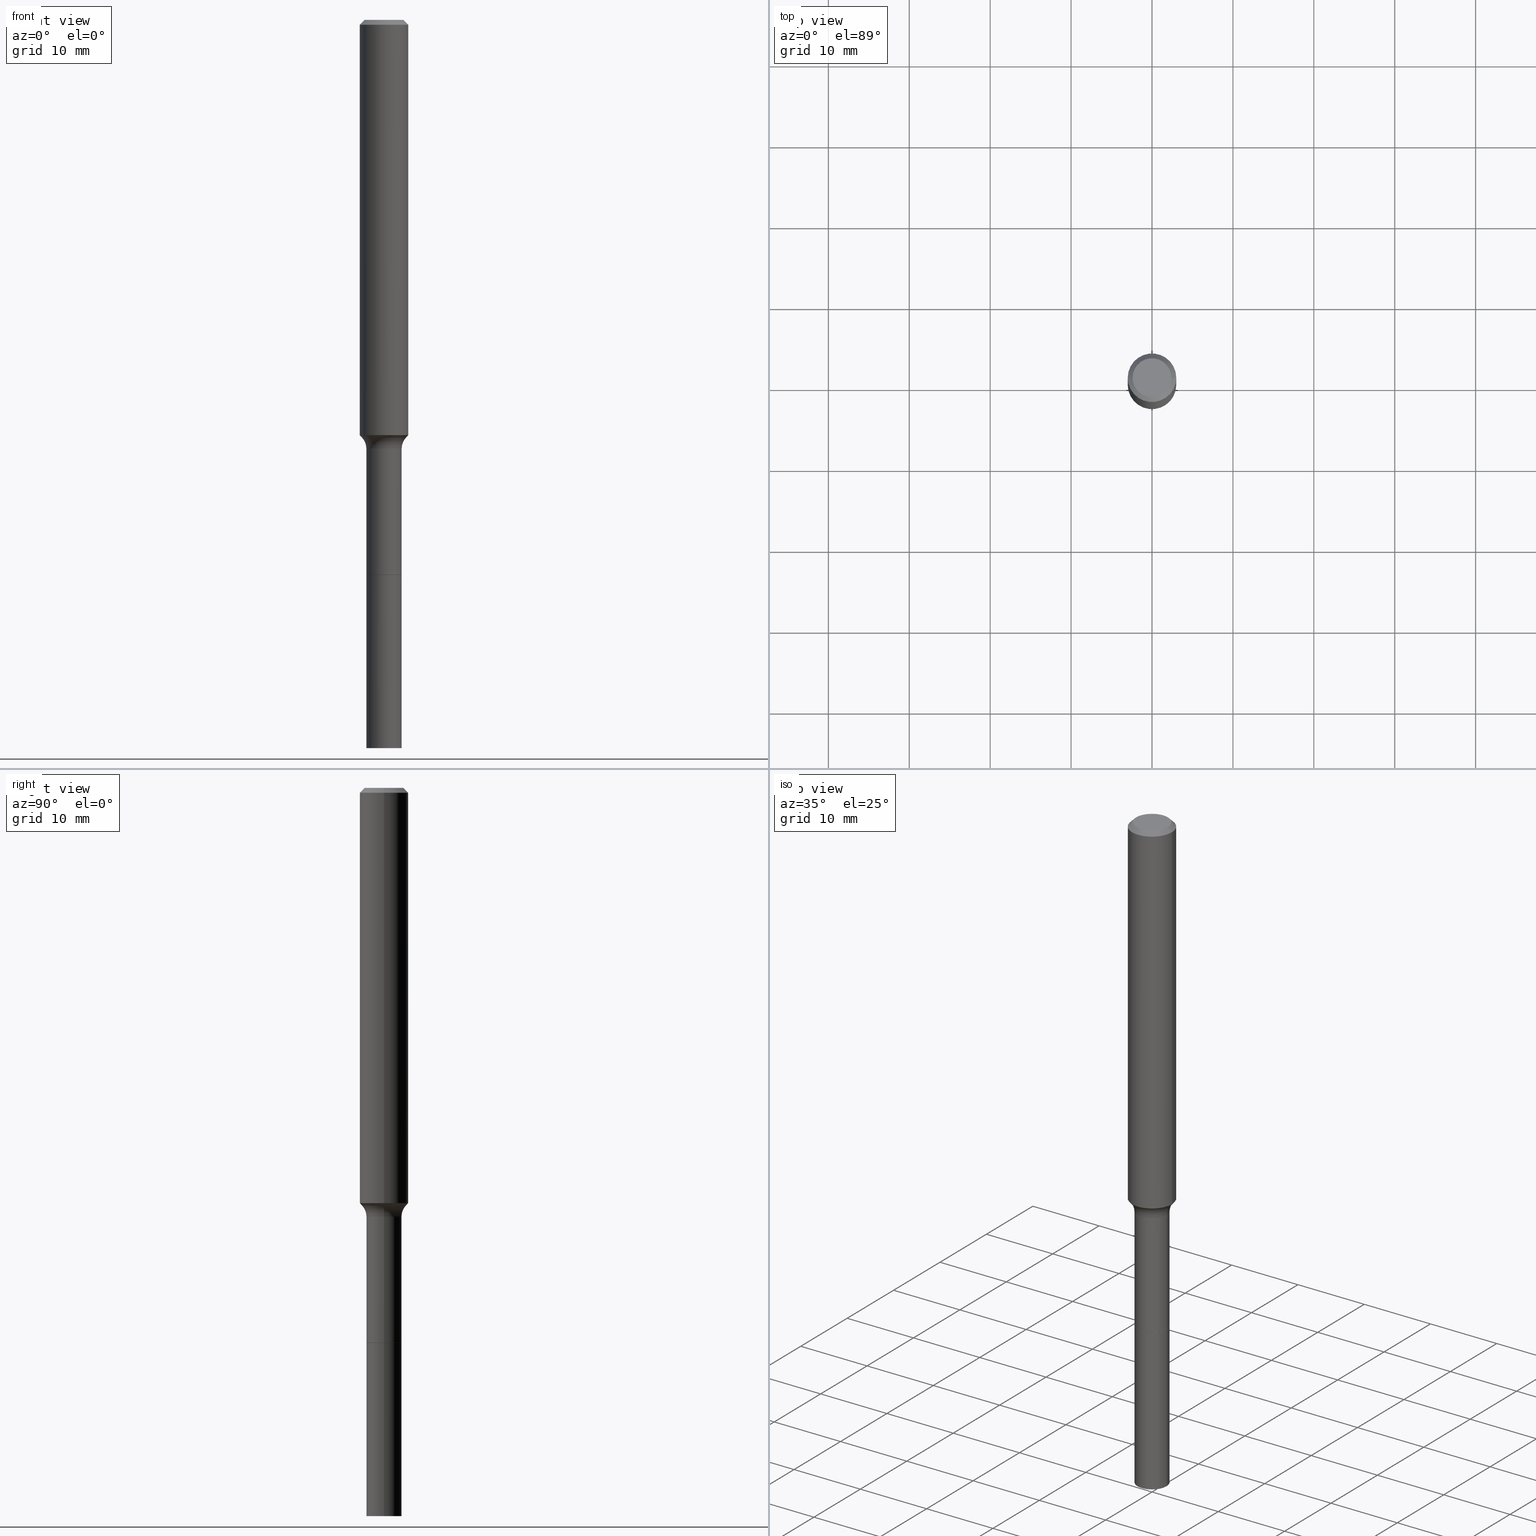
[diagram: canonical four-view strip — front | top / right | iso, engineering-drawing reading convention]
A machine part, canonical four-view strip (front | top / right | iso — engineering-drawing reading convention). The complete STEP part file that produces these views, byte-faithful:
ISO-10303-21;
HEADER;
FILE_DESCRIPTION (( 'STEP AP203' ),
    '1' );
FILE_NAME ('58877.STEP',
    '2025-04-01T15:26:20',
    ( '' ),
    ( '' ),
    'SwSTEP 2.0',
    'SolidWorks 2024',
    '' );
FILE_SCHEMA (( 'CONFIG_CONTROL_DESIGN' ));
ENDSEC;

DATA;
#1 = DIRECTION ( 'NONE',  ( 1.000000000000000000, -6.982962677686269077E-15, 4.883557194083113462E-29 ) ) ;
#2 = CC_DESIGN_PERSON_AND_ORGANIZATION_ASSIGNMENT ( #42, #45, ( #33 ) ) ;
#3 = LINE ( 'NONE', #360, #274 ) ;
#4 = CARTESIAN_POINT ( 'NONE',  ( -0.08594999999999998475, -7.742832195863360174E-15, -2.698799999999999422 ) ) ;
#5 = CARTESIAN_POINT ( 'NONE',  ( 8.665029620955794069E-29, -1.237136582792291707E-14, -3.543299999999999894 ) ) ;
#6 = VECTOR ( 'NONE', #326, 39.37007874015748143 ) ;
#7 = VECTOR ( 'NONE', #58, 39.37007874015748143 ) ;
#8 = FACE_OUTER_BOUND ( 'NONE', #40, .T. ) ;
#9 = FACE_OUTER_BOUND ( 'NONE', #502, .T. ) ;
#10 = ADVANCED_FACE ( 'NONE', ( #279 ), #32, .F. ) ;
#11 = PERSON_AND_ORGANIZATION ( #113, #425 ) ;
#12 = FACE_OUTER_BOUND ( 'NONE', #380, .T. ) ;
#13 =( CONVERSION_BASED_UNIT ( 'INCH', #303 ) LENGTH_UNIT ( ) NAMED_UNIT ( #102 ) );
#14 = APPROVAL_DATE_TIME ( #376, #78 ) ;
#15 = MECHANICAL_CONTEXT ( 'NONE', #464, 'mechanical' ) ;
#16 = AXIS2_PLACEMENT_3D ( 'NONE', #240, #37, #514 ) ;
#17 = ORIENTED_EDGE ( 'NONE', *, *, #423, .F. ) ;
#18 = FACE_OUTER_BOUND ( 'NONE', #318, .T. ) ;
#19 = DIRECTION ( 'NONE',  ( -2.445468806185136597E-29, 3.491481338843145583E-15, 1.000000000000000000 ) ) ;
#20 = COORDINATED_UNIVERSAL_TIME_OFFSET ( 5, 0, .BEHIND. ) ;
#21 = ORIENTED_EDGE ( 'NONE', *, *, #30, .F. ) ;
#22 = MANIFOLD_SOLID_BREP ( 'Body-Move/Copy2[2]', #507 ) ;
#23 = ORIENTED_EDGE ( 'NONE', *, *, #193, .F. ) ;
#24 = MANIFOLD_SOLID_BREP ( 'Body-Move/Copy2[1]', #329 ) ;
#25 = APPROVAL_STATUS ( 'not_yet_approved' ) ;
#26 = AXIS2_PLACEMENT_3D ( 'NONE', #518, #356, #509 ) ;
#27 = AXIS2_PLACEMENT_3D ( 'NONE', #218, #267, #335 ) ;
#28 = ORIENTED_EDGE ( 'NONE', *, *, #205, .T. ) ;
#29 = EDGE_CURVE ( 'NONE', #384, #154, #292, .T. ) ;
#30 = EDGE_CURVE ( 'NONE', #244, #422, #174, .T. ) ;
#31 = SECURITY_CLASSIFICATION ( '', '', #64 ) ;
#32 = PLANE ( 'NONE',  #500 ) ;
#33 = PRODUCT_DEFINITION ( 'UNKNOWN', '', #366, #280 ) ;
#34 = VERTEX_POINT ( 'NONE', #286 ) ;
#35 = ORIENTED_EDGE ( 'NONE', *, *, #387, .T. ) ;
#36 = AXIS2_PLACEMENT_3D ( 'NONE', #204, #477, #358 ) ;
#37 = DIRECTION ( 'NONE',  ( -2.445468806185136597E-29, 3.491481338843145583E-15, 1.000000000000000000 ) ) ;
#38 = DIRECTION ( 'NONE',  ( 1.000000000000000000, -6.982962677686265922E-15, 4.876176775795935793E-29 ) ) ;
#39 = CARTESIAN_POINT ( 'NONE',  ( 5.776197320209327532E-31, -8.246878922347559293E-17, -0.02362000000000014088 ) ) ;
#40 = EDGE_LOOP ( 'NONE', ( #345, #357, #230, #23 ) ) ;
#41 = FACE_OUTER_BOUND ( 'NONE', #351, .T. ) ;
#42 = PERSON_AND_ORGANIZATION ( #113, #425 ) ;
#43 = CARTESIAN_POINT ( 'NONE',  ( 0.1074417038704664346, -7.844044161600553414E-15, -2.031740131194999854 ) ) ;
#44 = CARTESIAN_POINT ( 'NONE',  ( 0.08594999999999992923, -7.884463159375587951E-15, -2.086299999999999599 ) ) ;
#45 = PERSON_AND_ORGANIZATION_ROLE ( 'creator' ) ;
#46 = VECTOR ( 'NONE', #469, 39.37007874015748143 ) ;
#47 = DIRECTION ( 'NONE',  ( -2.445468806185136597E-29, 3.491481338843145583E-15, 1.000000000000000000 ) ) ;
#48 = CARTESIAN_POINT ( 'NONE',  ( 4.940606325934994993E-29, -7.053876437083654599E-15, -2.020310507923510634 ) ) ;
#49 = DIRECTION ( 'NONE',  ( -2.445468806185136597E-29, 3.491481338843145583E-15, 1.000000000000000000 ) ) ;
#50 = DIRECTION ( 'NONE',  ( -2.445468806185136877E-29, 3.491481338843145188E-15, 1.000000000000000000 ) ) ;
#51 = ADVANCED_FACE ( 'NONE', ( #245 ), #400, .F. ) ;
#52 = CARTESIAN_POINT ( 'NONE',  ( 6.601053948535538665E-29, -9.424555577939300720E-15, -2.699299999999999589 ) ) ;
#53 = EDGE_CURVE ( 'NONE', #34, #456, #55, .T. ) ;
#54 = APPLICATION_PROTOCOL_DEFINITION ( 'international standard', 'config_control_design', 1994, #223 ) ;
#55 = CIRCLE ( 'NONE', #336, 0.08544999999999998430 ) ;
#56 = CIRCLE ( 'NONE', #347, 0.08595000000000020679 ) ;
#57 = CARTESIAN_POINT ( 'NONE',  ( 0.08594999999999998475, -1.002474122008643652E-14, -2.699299999999999589 ) ) ;
#58 = DIRECTION ( 'NONE',  ( -2.445468806185136877E-29, 3.491481338843145188E-15, 1.000000000000000000 ) ) ;
#59 = CYLINDRICAL_SURFACE ( 'NONE', #275, 0.1181000000000001215 ) ;
#60 = ORIENTED_EDGE ( 'NONE', *, *, #258, .T. ) ;
#61 =( LENGTH_UNIT ( ) NAMED_UNIT ( * ) SI_UNIT ( $, .METRE. ) );
#62 = PLANE ( 'NONE',  #189 ) ;
#63 = AXIS2_PLACEMENT_3D ( 'NONE', #444, #132, #478 ) ;
#64 = SECURITY_CLASSIFICATION_LEVEL ( 'unclassified' ) ;
#65 = EDGE_LOOP ( 'NONE', ( #320, #155, #398, #337 ) ) ;
#66 = ORIENTED_EDGE ( 'NONE', *, *, #152, .F. ) ;
#67 = SHAPE_DEFINITION_REPRESENTATION ( #117, #83 ) ;
#68 = ADVANCED_FACE ( 'NONE', ( #234 ), #162, .F. ) ;
#69 = ORIENTED_EDGE ( 'NONE', *, *, #29, .T. ) ;
#70 = EDGE_CURVE ( 'NONE', #305, #461, #284, .T. ) ;
#71 = CALENDAR_DATE ( 2025, 1, 4 ) ;
#72 = APPROVAL_ROLE ( '' ) ;
#73 = AXIS2_PLACEMENT_3D ( 'NONE', #411, #265, #176 ) ;
#74 = AXIS2_PLACEMENT_3D ( 'NONE', #413, #381, #183 ) ;
#75 = DIRECTION ( 'NONE',  ( 1.000000000000000000, -6.982962677686278543E-15, 0.000000000000000000 ) ) ;
#76 = ORIENTED_EDGE ( 'NONE', *, *, #281, .T. ) ;
#77 = EDGE_LOOP ( 'NONE', ( #282, #511, #112, #79 ) ) ;
#78 = APPROVAL ( #25, 'UNSPECIFIED' ) ;
#79 = ORIENTED_EDGE ( 'NONE', *, *, #504, .F. ) ;
#80 = FACE_OUTER_BOUND ( 'NONE', #118, .T. ) ;
#81 = DIRECTION ( 'NONE',  ( -2.445468806185136597E-29, 3.491481338843145583E-15, 1.000000000000000000 ) ) ;
#82 = DIRECTION ( 'NONE',  ( 2.445468806185136597E-29, -3.491481338843145583E-15, -1.000000000000000000 ) ) ;
#83 = ADVANCED_BREP_SHAPE_REPRESENTATION ( '58877', ( #24, #22, #107 ), #116 ) ;
#84 = FACE_OUTER_BOUND ( 'NONE', #65, .T. ) ;
#85 = CARTESIAN_POINT ( 'NONE',  ( 5.101981570344049922E-29, -7.284277517228453725E-15, -2.086299999999999599 ) ) ;
#86 = ADVANCED_FACE ( 'NONE', ( #167 ), #317, .T. ) ;
#87 = CARTESIAN_POINT ( 'NONE',  ( 5.776197320209327532E-31, -8.246878922347559293E-17, -0.02362000000000014088 ) ) ;
#88 = AXIS2_PLACEMENT_3D ( 'NONE', #316, #81, #438 ) ;
#89 = CARTESIAN_POINT ( 'NONE',  ( 6.601053948535538665E-29, -9.424555577939300720E-15, -2.699299999999999589 ) ) ;
#90 = CARTESIAN_POINT ( 'NONE',  ( -0.1181000000000001215, 8.391509709326791832E-16, -5.809262341591049389E-30 ) ) ;
#91 = CC_DESIGN_APPROVAL ( #78, ( #31 ) ) ;
#92 = EDGE_CURVE ( 'NONE', #127, #432, #130, .T. ) ;
#93 = DIRECTION ( 'NONE',  ( -2.445468806185136877E-29, 3.491481338843145188E-15, 1.000000000000000000 ) ) ;
#94 = DIRECTION ( 'NONE',  ( -2.445468806185136597E-29, 3.491481338843145583E-15, 1.000000000000000000 ) ) ;
#95 = DIRECTION ( 'NONE',  ( 1.000000000000000000, -6.982962677686278543E-15, 0.000000000000000000 ) ) ;
#96 = CARTESIAN_POINT ( 'NONE',  ( 0.000000000000000000, 0.000000000000000000, 0.000000000000000000 ) ) ;
#97 = APPROVAL ( #177, 'UNSPECIFIED' ) ;
#98 = DIRECTION ( 'NONE',  ( -2.445468806185136597E-29, 3.491481338843145583E-15, 1.000000000000000000 ) ) ;
#99 = DIRECTION ( 'NONE',  ( -2.445468806185136597E-29, 3.491481338843145583E-15, 1.000000000000000000 ) ) ;
#100 = VECTOR ( 'NONE', #50, 39.37007874015748143 ) ;
#101 = AXIS2_PLACEMENT_3D ( 'NONE', #219, #94, #333 ) ;
#102 = DIMENSIONAL_EXPONENTS ( 1.000000000000000000, 0.000000000000000000, 0.000000000000000000, 0.000000000000000000, 0.000000000000000000, 0.000000000000000000, 0.000000000000000000 ) ;
#103 = ORIENTED_EDGE ( 'NONE', *, *, #70, .T. ) ;
#104 = DIRECTION ( 'NONE',  ( -2.445468806185136597E-29, 3.491481338843145583E-15, 1.000000000000000000 ) ) ;
#105 = ORIENTED_EDGE ( 'NONE', *, *, #201, .T. ) ;
#106 = CARTESIAN_POINT ( 'NONE',  ( 4.968557113111869591E-29, -7.093782753446066454E-15, -2.031740131194999854 ) ) ;
#107 = AXIS2_PLACEMENT_3D ( 'NONE', #448, #494, #306 ) ;
#108 = AXIS2_PLACEMENT_3D ( 'NONE', #137, #247, #1 ) ;
#109 = VERTEX_POINT ( 'NONE', #372 ) ;
#110 = ADVANCED_FACE ( 'NONE', ( #147 ), #480, .T. ) ;
#111 = ADVANCED_FACE ( 'NONE', ( #327 ), #406, .T. ) ;
#112 = ORIENTED_EDGE ( 'NONE', *, *, #70, .F. ) ;
#113 = PERSON ( 'UNSPECIFIED', 'UNSPECIFIED', 'UNSPECIFIED', ('UNSPECIFIED'), ('UNSPECIFIED'), ('UNSPECIFIED') ) ;
#114 = EDGE_LOOP ( 'NONE', ( #69, #506 ) ) ;
#115 = AXIS2_PLACEMENT_3D ( 'NONE', #203, #476, #192 ) ;
#116 =( GEOMETRIC_REPRESENTATION_CONTEXT ( 3 ) GLOBAL_UNCERTAINTY_ASSIGNED_CONTEXT ( ( #388 ) ) GLOBAL_UNIT_ASSIGNED_CONTEXT ( ( #13, #178, #300 ) ) REPRESENTATION_CONTEXT ( 'NONE', 'WORKASPACE' ) );
#117 = PRODUCT_DEFINITION_SHAPE ( 'NONE', 'NONE',  #33 ) ;
#118 = EDGE_LOOP ( 'NONE', ( #157, #312, #28, #199 ) ) ;
#119 = PRODUCT_RELATED_PRODUCT_CATEGORY ( 'detail', '', ( #146 ) ) ;
#120 = ORIENTED_EDGE ( 'NONE', *, *, #161, .T. ) ;
#121 = CARTESIAN_POINT ( 'NONE',  ( 0.1180999999999999966, -9.071566814582237199E-16, -0.02362000000000014088 ) ) ;
#122 = AXIS2_PLACEMENT_3D ( 'NONE', #96, #420, #200 ) ;
#123 = ORIENTED_EDGE ( 'NONE', *, *, #193, .T. ) ;
#124 = CIRCLE ( 'NONE', #232, 0.08594999999999992923 ) ;
#125 = LINE ( 'NONE', #211, #241 ) ;
#126 = ADVANCED_FACE ( 'NONE', ( #84 ), #354, .T. ) ;
#127 = VERTEX_POINT ( 'NONE', #254 ) ;
#128 = ADVANCED_FACE ( 'NONE', ( #408 ), #62, .F. ) ;
#129 = DIRECTION ( 'NONE',  ( -0.7071067811865461294, 2.468850131082242072E-15, -0.7071067811865489050 ) ) ;
#130 = LINE ( 'NONE', #226, #100 ) ;
#131 = DIRECTION ( 'NONE',  ( -6.982962677686266711E-15, -1.000000000000000000, 3.491481338843145583E-15 ) ) ;
#132 = DIRECTION ( 'NONE',  ( -2.445468806185136597E-29, 3.491481338843145583E-15, 1.000000000000000000 ) ) ;
#133 = CYLINDRICAL_SURFACE ( 'NONE', #397, 0.08595000000000010965 ) ;
#134 = CARTESIAN_POINT ( 'NONE',  ( 7.545787641473140628E-46, -1.077338491108201769E-31, -3.085620075131671975E-17 ) ) ;
#135 = DIRECTION ( 'NONE',  ( -2.445468806185136597E-29, 3.491481338843145583E-15, 1.000000000000000000 ) ) ;
#136 = PERSON_AND_ORGANIZATION_ROLE ( 'design_owner' ) ;
#137 = CARTESIAN_POINT ( 'NONE',  ( 5.101981570344049922E-29, -7.284277517228453725E-15, -2.086299999999999599 ) ) ;
#138 = CARTESIAN_POINT ( 'NONE',  ( -0.1074417038704665456, -6.330363531417588506E-15, -2.031740131194999854 ) ) ;
#139 = DATE_TIME_ROLE ( 'creation_date' ) ;
#140 = COORDINATED_UNIVERSAL_TIME_OFFSET ( 5, 0, .BEHIND. ) ;
#141 = AXIS2_PLACEMENT_3D ( 'NONE', #341, #330, #483 ) ;
#142 = AXIS2_PLACEMENT_3D ( 'NONE', #39, #82, #442 ) ;
#143 = VERTEX_POINT ( 'NONE', #43 ) ;
#144 = PERSON_AND_ORGANIZATION ( #113, #425 ) ;
#145 = CC_DESIGN_APPROVAL ( #268, ( #366 ) ) ;
#146 = PRODUCT ( '58877', '58877', '', ( #15 ) ) ;
#147 = FACE_OUTER_BOUND ( 'NONE', #308, .T. ) ;
#148 = ORIENTED_EDGE ( 'NONE', *, *, #349, .F. ) ;
#149 = ADVANCED_FACE ( 'NONE', ( #495 ), #290, .T. ) ;
#150 = CIRCLE ( 'NONE', #452, 0.07999999999999993228 ) ;
#151 = APPROVAL_ROLE ( '' ) ;
#152 = EDGE_CURVE ( 'NONE', #34, #156, #212, .T. ) ;
#153 = CONICAL_SURFACE ( 'NONE', #217, 0.08544999999999998430, 0.7853981633972775267 ) ;
#154 = VERTEX_POINT ( 'NONE', #367 ) ;
#155 = ORIENTED_EDGE ( 'NONE', *, *, #272, .T. ) ;
#156 = VERTEX_POINT ( 'NONE', #4 ) ;
#157 = ORIENTED_EDGE ( 'NONE', *, *, #510, .F. ) ;
#158 = DIRECTION ( 'NONE',  ( 1.000000000000000000, -6.982962677686277755E-15, 0.000000000000000000 ) ) ;
#159 = CARTESIAN_POINT ( 'NONE',  ( 4.940606325934994993E-29, -7.053876437083654599E-15, -2.020310507923510634 ) ) ;
#160 = LINE ( 'NONE', #365, #46 ) ;
#161 = EDGE_CURVE ( 'NONE', #418, #127, #225, .T. ) ;
#162 = TOROIDAL_SURFACE ( 'NONE', #108, 0.1659499999999999031, 0.07999999999999993228 ) ;
#163 = ORIENTED_EDGE ( 'NONE', *, *, #186, .F. ) ;
#164 = AXIS2_PLACEMENT_3D ( 'NONE', #106, #104, #378 ) ;
#165 = DIRECTION ( 'NONE',  ( 1.000000000000000000, -6.982962677686265922E-15, 0.000000000000000000 ) ) ;
#166 = DATE_AND_TIME ( #195, #264 ) ;
#167 = FACE_OUTER_BOUND ( 'NONE', #389, .T. ) ;
#168 = CARTESIAN_POINT ( 'NONE',  ( 6.601053948535538665E-29, -9.424555577939300720E-15, -2.699299999999999589 ) ) ;
#169 = DIRECTION ( 'NONE',  ( 1.000000000000000000, -6.982962677686266711E-15, 0.000000000000000000 ) ) ;
#170 = FACE_OUTER_BOUND ( 'NONE', #222, .T. ) ;
#171 = DIRECTION ( 'NONE',  ( 1.000000000000000000, -6.982962677686278543E-15, 0.000000000000000000 ) ) ;
#172 = DIRECTION ( 'NONE',  ( -2.445468806185136597E-29, 3.491481338843145583E-15, 1.000000000000000000 ) ) ;
#173 = CIRCLE ( 'NONE', #430, 0.1181000000000002326 ) ;
#174 = CIRCLE ( 'NONE', #321, 0.1181000000000002326 ) ;
#175 = CC_DESIGN_PERSON_AND_ORGANIZATION_ASSIGNMENT ( #144, #136, ( #146 ) ) ;
#176 = DIRECTION ( 'NONE',  ( 1.000000000000000000, -6.982962677686265922E-15, 0.000000000000000000 ) ) ;
#177 = APPROVAL_STATUS ( 'not_yet_approved' ) ;
#178 =( NAMED_UNIT ( * ) PLANE_ANGLE_UNIT ( ) SI_UNIT ( $, .RADIAN. ) );
#179 = EDGE_CURVE ( 'NONE', #386, #432, #466, .T. ) ;
#180 = VERTEX_POINT ( 'NONE', #441 ) ;
#181 = CARTESIAN_POINT ( 'NONE',  ( -0.08594999999999995699, 6.107114813858058042E-16, -4.227824710074089488E-30 ) ) ;
#182 = ORIENTED_EDGE ( 'NONE', *, *, #261, .F. ) ;
#183 = DIRECTION ( 'NONE',  ( -1.000000000000000000, 7.105427357601005014E-15, 0.000000000000000000 ) ) ;
#184 = DIRECTION ( 'NONE',  ( 1.000000000000000000, -6.982962677686265922E-15, 0.000000000000000000 ) ) ;
#185 = CALENDAR_DATE ( 2025, 1, 4 ) ;
#186 = EDGE_CURVE ( 'NONE', #154, #384, #390, .T. ) ;
#187 = EDGE_LOOP ( 'NONE', ( #427, #323, #424, #343 ) ) ;
#188 = ORIENTED_EDGE ( 'NONE', *, *, #348, .F. ) ;
#189 = AXIS2_PLACEMENT_3D ( 'NONE', #215, #209, #252 ) ;
#190 = AXIS2_PLACEMENT_3D ( 'NONE', #415, #98, #445 ) ;
#191 = EDGE_LOOP ( 'NONE', ( #60, #239, #353, #396 ) ) ;
#192 = DIRECTION ( 'NONE',  ( -1.000000000000000000, 6.982962677686265922E-15, -4.876176775795935793E-29 ) ) ;
#193 = EDGE_CURVE ( 'NONE', #109, #277, #446, .T. ) ;
#194 = EDGE_LOOP ( 'NONE', ( #273, #270 ) ) ;
#195 = CALENDAR_DATE ( 2025, 1, 4 ) ;
#196 = VECTOR ( 'NONE', #517, 39.37007874015748143 ) ;
#197 = ORIENTED_EDGE ( 'NONE', *, *, #504, .T. ) ;
#198 = DIRECTION ( 'NONE',  ( 1.000000000000000000, -6.982962677686266711E-15, 0.000000000000000000 ) ) ;
#199 = ORIENTED_EDGE ( 'NONE', *, *, #401, .T. ) ;
#200 = DIRECTION ( 'NONE',  ( 1.000000000000000000, -6.982962677686265922E-15, 4.876176775795935232E-29 ) ) ;
#201 = EDGE_CURVE ( 'NONE', #143, #180, #346, .T. ) ;
#202 = ADVANCED_FACE ( 'NONE', ( #8 ), #449, .T. ) ;
#203 = CARTESIAN_POINT ( 'NONE',  ( 6.601053948535538665E-29, -9.424555577939300720E-15, -2.699299999999999589 ) ) ;
#204 = CARTESIAN_POINT ( 'NONE',  ( 5.101981570344049922E-29, -7.284277517228453725E-15, -2.086299999999999599 ) ) ;
#205 = EDGE_CURVE ( 'NONE', #143, #277, #150, .T. ) ;
#206 = CIRCLE ( 'NONE', #231, 0.1074417038704665456 ) ;
#207 = CARTESIAN_POINT ( 'NONE',  ( -0.08544999999999998430, -8.817396810232294927E-15, -2.699299999999999589 ) ) ;
#208 = DIRECTION ( 'NONE',  ( -2.445468806185136597E-29, 3.491481338843145583E-15, 1.000000000000000000 ) ) ;
#209 = DIRECTION ( 'NONE',  ( 2.438088387897960049E-29, -3.491481338843145188E-15, -1.000000000000000000 ) ) ;
#210 = APPROVAL_PERSON_ORGANIZATION ( #271, #268, #72 ) ;
#211 = CARTESIAN_POINT ( 'NONE',  ( 0.1180999999999999966, -8.926936027602933910E-16, -0.02362000000000014088 ) ) ;
#212 = LINE ( 'NONE', #207, #196 ) ;
#213 = CC_DESIGN_DATE_AND_TIME_ASSIGNMENT ( #269, #342, ( #31 ) ) ;
#214 = CARTESIAN_POINT ( 'NONE',  ( 0.08544999999999998430, -1.002124973874759352E-14, -2.699299999999999589 ) ) ;
#215 = CARTESIAN_POINT ( 'NONE',  ( 3.772893820736570314E-46, -5.386692455541008845E-32, -1.542810037565835988E-17 ) ) ;
#216 = CARTESIAN_POINT ( 'NONE',  ( -0.08595000000000020679, -1.028724922154529905E-14, -3.543299999999999894 ) ) ;
#217 = AXIS2_PLACEMENT_3D ( 'NONE', #52, #135, #259 ) ;
#218 = CARTESIAN_POINT ( 'NONE',  ( 6.601053948535538665E-29, -9.424555577939300720E-15, -2.699299999999999589 ) ) ;
#219 = CARTESIAN_POINT ( 'NONE',  ( 6.599831214132445864E-29, -9.422809837269878427E-15, -2.698799999999999422 ) ) ;
#220 = FACE_OUTER_BOUND ( 'NONE', #191, .T. ) ;
#221 = EDGE_CURVE ( 'NONE', #109, #156, #301, .T. ) ;
#222 = EDGE_LOOP ( 'NONE', ( #472, #120, #463, #224 ) ) ;
#223 = APPLICATION_CONTEXT ( 'configuration controlled 3d designs of mechanical parts and assemblies' ) ;
#224 = ORIENTED_EDGE ( 'NONE', *, *, #179, .F. ) ;
#225 = CIRCLE ( 'NONE', #482, 0.08595000000000020679 ) ;
#226 = CARTESIAN_POINT ( 'NONE',  ( 0.08595000000000010965, -1.002474122008643652E-14, -2.699299999999999589 ) ) ;
#227 = PERSON_AND_ORGANIZATION_ROLE ( 'classification_officer' ) ;
#228 = ORIENTED_EDGE ( 'NONE', *, *, #243, .T. ) ;
#229 = ORIENTED_EDGE ( 'NONE', *, *, #387, .F. ) ;
#230 = ORIENTED_EDGE ( 'NONE', *, *, #401, .F. ) ;
#231 = AXIS2_PLACEMENT_3D ( 'NONE', #404, #440, #165 ) ;
#232 = AXIS2_PLACEMENT_3D ( 'NONE', #85, #248, #479 ) ;
#233 = CALENDAR_DATE ( 2025, 1, 4 ) ;
#234 = FACE_OUTER_BOUND ( 'NONE', #187, .T. ) ;
#235 = EDGE_CURVE ( 'NONE', #461, #305, #414, .T. ) ;
#236 = PERSON_AND_ORGANIZATION ( #113, #425 ) ;
#237 = LOCAL_TIME ( 11, 26, 20.00000000000000000, #426 ) ;
#238 = ORIENTED_EDGE ( 'NONE', *, *, #235, .F. ) ;
#239 = ORIENTED_EDGE ( 'NONE', *, *, #152, .T. ) ;
#240 = CARTESIAN_POINT ( 'NONE',  ( 6.599831214132445864E-29, -9.422809837269878427E-15, -2.698799999999999422 ) ) ;
#241 = VECTOR ( 'NONE', #287, 39.37007874015748143 ) ;
#242 = CIRCLE ( 'NONE', #338, 0.08594999999999998475 ) ;
#243 = EDGE_CURVE ( 'NONE', #422, #244, #173, .T. ) ;
#244 = VERTEX_POINT ( 'NONE', #246 ) ;
#245 = FACE_OUTER_BOUND ( 'NONE', #503, .T. ) ;
#246 = CARTESIAN_POINT ( 'NONE',  ( 0.1181000000000002326, -7.878564329318403650E-15, -2.020310507923510634 ) ) ;
#247 = DIRECTION ( 'NONE',  ( -2.445468806185136597E-29, 3.491481338843145583E-15, 1.000000000000000000 ) ) ;
#248 = DIRECTION ( 'NONE',  ( -2.445468806185136597E-29, 3.491481338843145583E-15, 1.000000000000000000 ) ) ;
#249 = AXIS2_PLACEMENT_3D ( 'NONE', #134, #294, #486 ) ;
#250 = DIRECTION ( 'NONE',  ( 1.000000000000000000, -6.982962677686263555E-15, 0.000000000000000000 ) ) ;
#251 = CARTESIAN_POINT ( 'NONE',  ( 5.776197320209327532E-31, -8.246878922347559293E-17, -0.02362000000000014088 ) ) ;
#252 = DIRECTION ( 'NONE',  ( -1.000000000000000000, 6.982962677686265922E-15, -4.876176775795935793E-29 ) ) ;
#253 = LINE ( 'NONE', #214, #285 ) ;
#254 = CARTESIAN_POINT ( 'NONE',  ( 0.08595000000000020679, -1.297155147007005288E-14, -3.543299999999999894 ) ) ;
#255 = DIRECTION ( 'NONE',  ( -1.000000000000000000, 6.982962677686265922E-15, -4.876176775795935793E-29 ) ) ;
#256 = COORDINATED_UNIVERSAL_TIME_OFFSET ( 5, 0, .BEHIND. ) ;
#257 = CARTESIAN_POINT ( 'NONE',  ( -0.08594999999999992923, -7.742832195863361751E-15, -2.086299999999999599 ) ) ;
#258 = EDGE_CURVE ( 'NONE', #456, #34, #474, .T. ) ;
#259 = DIRECTION ( 'NONE',  ( 1.000000000000000000, -6.982962677686278543E-15, 0.000000000000000000 ) ) ;
#260 = PERSON_AND_ORGANIZATION_ROLE ( 'design_supplier' ) ;
#261 = EDGE_CURVE ( 'NONE', #154, #305, #125, .T. ) ;
#262 = VECTOR ( 'NONE', #299, 39.37007874015748143 ) ;
#263 = LINE ( 'NONE', #181, #7 ) ;
#264 = LOCAL_TIME ( 11, 26, 20.00000000000000000, #140 ) ;
#265 = DIRECTION ( 'NONE',  ( -2.445468806185136597E-29, 3.491481338843145583E-15, 1.000000000000000000 ) ) ;
#266 = EDGE_LOOP ( 'NONE', ( #491, #392, #148, #377 ) ) ;
#267 = DIRECTION ( 'NONE',  ( -2.445468806185136597E-29, 3.491481338843145583E-15, 1.000000000000000000 ) ) ;
#268 = APPROVAL ( #428, 'UNSPECIFIED' ) ;
#269 = DATE_AND_TIME ( #185, #393 ) ;
#270 = ORIENTED_EDGE ( 'NONE', *, *, #53, .F. ) ;
#271 = PERSON_AND_ORGANIZATION ( #113, #425 ) ;
#272 = EDGE_CURVE ( 'NONE', #180, #143, #206, .T. ) ;
#273 = ORIENTED_EDGE ( 'NONE', *, *, #258, .F. ) ;
#274 = VECTOR ( 'NONE', #129, 39.37007874015748143 ) ;
#275 = AXIS2_PLACEMENT_3D ( 'NONE', #458, #99, #374 ) ;
#276 = COORDINATED_UNIVERSAL_TIME_OFFSET ( 5, 0, .BEHIND. ) ;
#277 = VERTEX_POINT ( 'NONE', #44 ) ;
#278 = CC_DESIGN_APPROVAL ( #97, ( #33 ) ) ;
#279 = FACE_OUTER_BOUND ( 'NONE', #194, .T. ) ;
#280 = DESIGN_CONTEXT ( 'detailed design', #223, 'design' ) ;
#281 = EDGE_CURVE ( 'NONE', #384, #461, #3, .T. ) ;
#282 = ORIENTED_EDGE ( 'NONE', *, *, #30, .T. ) ;
#283 = CARTESIAN_POINT ( 'NONE',  ( 0.1074417038704665456, -7.844044161600554992E-15, -2.031740131194999854 ) ) ;
#284 = CIRCLE ( 'NONE', #459, 0.1180999999999999966 ) ;
#285 = VECTOR ( 'NONE', #369, 39.37007874015748143 ) ;
#286 = CARTESIAN_POINT ( 'NONE',  ( -0.08544999999999998430, -8.814747583058182937E-15, -2.699299999999999589 ) ) ;
#287 = DIRECTION ( 'NONE',  ( 0.7071067811865461294, -7.319954787623251312E-15, -0.7071067811865489050 ) ) ;
#288 = CARTESIAN_POINT ( 'NONE',  ( 6.601053948535538665E-29, -9.424555577939300720E-15, -2.699299999999999589 ) ) ;
#289 = CARTESIAN_POINT ( 'NONE',  ( 0.1659499999999999031, -8.443100173590489604E-15, -2.086299999999999599 ) ) ;
#290 = CYLINDRICAL_SURFACE ( 'NONE', #460, 0.08594999999999995699 ) ;
#291 = DIRECTION ( 'NONE',  ( -2.445468806185136597E-29, 3.491481338843145583E-15, 1.000000000000000000 ) ) ;
#292 = CIRCLE ( 'NONE', #88, 0.09447999999999998066 ) ;
#293 = DIRECTION ( 'NONE',  ( -2.445468806185136597E-29, 3.491481338843145583E-15, 1.000000000000000000 ) ) ;
#294 = DIRECTION ( 'NONE',  ( -2.445468806185136597E-29, 3.491481338843145583E-15, 1.000000000000000000 ) ) ;
#295 = PLANE ( 'NONE',  #322 ) ;
#296 = EDGE_CURVE ( 'NONE', #418, #386, #160, .T. ) ;
#297 = ADVANCED_FACE ( 'NONE', ( #170 ), #133, .T. ) ;
#298 = CARTESIAN_POINT ( 'NONE',  ( 0.08594999999999995699, -6.001856421471342262E-16, 4.191073938796604437E-30 ) ) ;
#299 = DIRECTION ( 'NONE',  ( -0.6819983600624947018, 7.399397606724272377E-15, 0.7313537016191740125 ) ) ;
#300 =( NAMED_UNIT ( * ) SI_UNIT ( $, .STERADIAN. ) SOLID_ANGLE_UNIT ( ) );
#301 = CIRCLE ( 'NONE', #16, 0.08594999999999998475 ) ;
#302 = ORIENTED_EDGE ( 'NONE', *, *, #53, .T. ) ;
#303 = LENGTH_MEASURE_WITH_UNIT ( LENGTH_MEASURE( 0.02539999999999999897 ), #61 );
#304 = LOCAL_TIME ( 11, 26, 20.00000000000000000, #276 ) ;
#305 = VERTEX_POINT ( 'NONE', #121 ) ;
#306 = DIRECTION ( 'NONE',  ( 1.000000000000000000, 0.000000000000000000, 0.000000000000000000 ) ) ;
#307 = CC_DESIGN_PERSON_AND_ORGANIZATION_ASSIGNMENT ( #311, #227, ( #31 ) ) ;
#308 = EDGE_LOOP ( 'NONE', ( #17, #228, #197, #238 ) ) ;
#309 = TOROIDAL_SURFACE ( 'NONE', #36, 0.1659499999999999031, 0.07999999999999993228 ) ;
#310 = CONICAL_SURFACE ( 'NONE', #142, 0.1180999999999999966, 0.7853981633974463916 ) ;
#311 = PERSON_AND_ORGANIZATION ( #113, #425 ) ;
#312 = ORIENTED_EDGE ( 'NONE', *, *, #201, .F. ) ;
#313 = EDGE_CURVE ( 'NONE', #143, #244, #363, .T. ) ;
#314 = ADVANCED_FACE ( 'NONE', ( #80 ), #309, .F. ) ;
#315 = ORIENTED_EDGE ( 'NONE', *, *, #313, .F. ) ;
#316 = CARTESIAN_POINT ( 'NONE',  ( 7.545787641473140628E-46, -1.077338491108201769E-31, -3.085620075131671975E-17 ) ) ;
#317 = CONICAL_SURFACE ( 'NONE', #421, 0.1180999999999999966, 0.7853981633974463916 ) ;
#318 = EDGE_LOOP ( 'NONE', ( #105, #340, #21, #315 ) ) ;
#319 = CARTESIAN_POINT ( 'NONE',  ( 6.601053948535538665E-29, -9.424555577939300720E-15, -2.699299999999999589 ) ) ;
#320 = ORIENTED_EDGE ( 'NONE', *, *, #402, .F. ) ;
#321 = AXIS2_PLACEMENT_3D ( 'NONE', #159, #355, #434 ) ;
#322 = AXIS2_PLACEMENT_3D ( 'NONE', #331, #447, #255 ) ;
#323 = ORIENTED_EDGE ( 'NONE', *, *, #510, .T. ) ;
#324 = ADVANCED_FACE ( 'NONE', ( #41 ), #310, .T. ) ;
#325 = DIRECTION ( 'NONE',  ( 1.000000000000000000, -6.982962677686265922E-15, 4.876176775795935232E-29 ) ) ;
#326 = DIRECTION ( 'NONE',  ( 0.6819983600624947018, -2.208861293262436754E-15, 0.7313537016191740125 ) ) ;
#327 = FACE_OUTER_BOUND ( 'NONE', #266, .T. ) ;
#328 = DIRECTION ( 'NONE',  ( -2.445468806185136597E-29, 3.491481338843145583E-15, 1.000000000000000000 ) ) ;
#329 = CLOSED_SHELL ( 'NONE', ( #111, #395, #297, #51 ) ) ;
#330 = DIRECTION ( 'NONE',  ( -2.445468806185136597E-29, 3.491481338843145583E-15, 1.000000000000000000 ) ) ;
#331 = CARTESIAN_POINT ( 'NONE',  ( 8.665029620955794069E-29, -1.237136582792291707E-14, -3.543299999999999894 ) ) ;
#332 = CARTESIAN_POINT ( 'NONE',  ( 0.000000000000000000, 0.000000000000000000, 0.000000000000000000 ) ) ;
#333 = DIRECTION ( 'NONE',  ( 1.000000000000000000, -6.982962677686273810E-15, 0.000000000000000000 ) ) ;
#334 = APPROVAL_ROLE ( '' ) ;
#335 = DIRECTION ( 'NONE',  ( 1.000000000000000000, -6.982962677686278543E-15, 0.000000000000000000 ) ) ;
#336 = AXIS2_PLACEMENT_3D ( 'NONE', #288, #465, #75 ) ;
#337 = ORIENTED_EDGE ( 'NONE', *, *, #243, .F. ) ;
#338 = AXIS2_PLACEMENT_3D ( 'NONE', #168, #291, #375 ) ;
#339 = DIRECTION ( 'NONE',  ( -2.445468806185136877E-29, 3.491481338843145188E-15, 1.000000000000000000 ) ) ;
#340 = ORIENTED_EDGE ( 'NONE', *, *, #402, .T. ) ;
#341 = CARTESIAN_POINT ( 'NONE',  ( 6.601053948535538665E-29, -9.424555577939300720E-15, -2.699299999999999589 ) ) ;
#342 = DATE_TIME_ROLE ( 'classification_date' ) ;
#343 = ORIENTED_EDGE ( 'NONE', *, *, #205, .F. ) ;
#344 = DATE_AND_TIME ( #233, #304 ) ;
#345 = ORIENTED_EDGE ( 'NONE', *, *, #221, .T. ) ;
#346 = CIRCLE ( 'NONE', #73, 0.1074417038704665456 ) ;
#347 = AXIS2_PLACEMENT_3D ( 'NONE', #5, #172, #95 ) ;
#348 = EDGE_CURVE ( 'NONE', #468, #277, #124, .T. ) ;
#349 = EDGE_CURVE ( 'NONE', #432, #386, #242, .T. ) ;
#350 = DATE_AND_TIME ( #473, #492 ) ;
#351 = EDGE_LOOP ( 'NONE', ( #163, #496, #103, #467 ) ) ;
#352 = EDGE_LOOP ( 'NONE', ( #429, #35, #123, #188 ) ) ;
#353 = ORIENTED_EDGE ( 'NONE', *, *, #221, .F. ) ;
#354 = CONICAL_SURFACE ( 'NONE', #515, 0.1074417038704665456, 0.7504915783575565325 ) ;
#355 = DIRECTION ( 'NONE',  ( -2.445468806185136597E-29, 3.491481338843145583E-15, 1.000000000000000000 ) ) ;
#356 = DIRECTION ( 'NONE',  ( -2.445468806185136597E-29, 3.491481338843145583E-15, 1.000000000000000000 ) ) ;
#357 = ORIENTED_EDGE ( 'NONE', *, *, #470, .T. ) ;
#358 = DIRECTION ( 'NONE',  ( 1.000000000000000000, -6.982962677686269077E-15, 4.883557194083113462E-29 ) ) ;
#359 = ORIENTED_EDGE ( 'NONE', *, *, #349, .T. ) ;
#360 = CARTESIAN_POINT ( 'NONE',  ( -0.1180999999999999966, 7.422191030112725094E-16, -0.02362000000000014088 ) ) ;
#361 = AXIS2_PLACEMENT_3D ( 'NONE', #251, #407, #512 ) ;
#362 = CARTESIAN_POINT ( 'NONE',  ( 8.665029620955794069E-29, -1.237136582792291707E-14, -3.543299999999999894 ) ) ;
#363 = LINE ( 'NONE', #283, #6 ) ;
#364 = DIRECTION ( 'NONE',  ( 2.445468806185136597E-29, -3.491481338843145583E-15, -1.000000000000000000 ) ) ;
#365 = CARTESIAN_POINT ( 'NONE',  ( -0.08595000000000010965, -8.813844096553493239E-15, -2.699299999999999589 ) ) ;
#366 = PRODUCT_DEFINITION_FORMATION_WITH_SPECIFIED_SOURCE ( 'ANY', '', #146, .NOT_KNOWN. ) ;
#367 = CARTESIAN_POINT ( 'NONE',  ( 0.09447999999999998066, -7.704367267948738690E-16, -3.085620075131172158E-17 ) ) ;
#368 = ADVANCED_FACE ( 'NONE', ( #12 ), #153, .T. ) ;
#369 = DIRECTION ( 'NONE',  ( 0.7071067811864267805, -2.468850131080992517E-15, 0.7071067811866682540 ) ) ;
#370 = APPROVAL_DATE_TIME ( #166, #97 ) ;
#371 = VECTOR ( 'NONE', #93, 39.37007874015748143 ) ;
#372 = CARTESIAN_POINT ( 'NONE',  ( 0.08594999999999998475, -1.002299547941701423E-14, -2.698799999999999422 ) ) ;
#373 = LINE ( 'NONE', #90, #431 ) ;
#374 = DIRECTION ( 'NONE',  ( 1.000000000000000000, -6.982962677686266711E-15, 4.876176775795935793E-29 ) ) ;
#375 = DIRECTION ( 'NONE',  ( 1.000000000000000000, -6.982962677686273810E-15, 0.000000000000000000 ) ) ;
#376 = DATE_AND_TIME ( #71, #237 ) ;
#377 = ORIENTED_EDGE ( 'NONE', *, *, #92, .F. ) ;
#378 = DIRECTION ( 'NONE',  ( 1.000000000000000000, -6.982962677686265922E-15, 0.000000000000000000 ) ) ;
#379 = AXIS2_PLACEMENT_3D ( 'NONE', #89, #443, #250 ) ;
#380 = EDGE_LOOP ( 'NONE', ( #66, #302, #462, #229 ) ) ;
#381 = DIRECTION ( 'NONE',  ( 7.105427357601001859E-15, 1.000000000000000000, -3.491481338843145583E-15 ) ) ;
#382 = DIRECTION ( 'NONE',  ( -1.000000000000000000, 6.982962677686266711E-15, 0.000000000000000000 ) ) ;
#383 = PERSON_AND_ORGANIZATION ( #113, #425 ) ;
#384 = VERTEX_POINT ( 'NONE', #487 ) ;
#385 = CC_DESIGN_SECURITY_CLASSIFICATION ( #31, ( #366 ) ) ;
#386 = VERTEX_POINT ( 'NONE', #484 ) ;
#387 = EDGE_CURVE ( 'NONE', #156, #109, #436, .T. ) ;
#388 = UNCERTAINTY_MEASURE_WITH_UNIT (LENGTH_MEASURE( 1.000000000000000082E-05 ), #13, 'distance_accuracy_value', 'NONE');
#389 = EDGE_LOOP ( 'NONE', ( #182, #493, #76, #513 ) ) ;
#390 = CIRCLE ( 'NONE', #249, 0.09447999999999998066 ) ;
#391 = PERSON_AND_ORGANIZATION_ROLE ( 'creator' ) ;
#392 = ORIENTED_EDGE ( 'NONE', *, *, #296, .T. ) ;
#393 = LOCAL_TIME ( 11, 26, 20.00000000000000000, #20 ) ;
#394 = CARTESIAN_POINT ( 'NONE',  ( 5.776197320209327532E-31, -8.246878922347559293E-17, -0.02362000000000014088 ) ) ;
#395 = ADVANCED_FACE ( 'NONE', ( #9 ), #295, .T. ) ;
#396 = ORIENTED_EDGE ( 'NONE', *, *, #437, .F. ) ;
#397 = AXIS2_PLACEMENT_3D ( 'NONE', #481, #208, #399 ) ;
#398 = ORIENTED_EDGE ( 'NONE', *, *, #313, .T. ) ;
#399 = DIRECTION ( 'NONE',  ( 1.000000000000000000, -6.982962677686263555E-15, 0.000000000000000000 ) ) ;
#400 = PLANE ( 'NONE',  #115 ) ;
#401 = EDGE_CURVE ( 'NONE', #277, #468, #501, .T. ) ;
#402 = EDGE_CURVE ( 'NONE', #180, #422, #412, .T. ) ;
#403 = CARTESIAN_POINT ( 'NONE',  ( 4.968557113111869591E-29, -7.093782753446066454E-15, -2.031740131194999854 ) ) ;
#404 = CARTESIAN_POINT ( 'NONE',  ( 4.968557113111869591E-29, -7.093782753446066454E-15, -2.031740131194999854 ) ) ;
#405 = CC_DESIGN_PERSON_AND_ORGANIZATION_ASSIGNMENT ( #383, #391, ( #366 ) ) ;
#406 = CYLINDRICAL_SURFACE ( 'NONE', #379, 0.08595000000000010965 ) ;
#407 = DIRECTION ( 'NONE',  ( -2.445468806185136597E-29, 3.491481338843145583E-15, 1.000000000000000000 ) ) ;
#408 = FACE_OUTER_BOUND ( 'NONE', #114, .T. ) ;
#409 = CARTESIAN_POINT ( 'NONE',  ( -0.1181000000000002326, -6.214725466150974824E-15, -2.020310507923510634 ) ) ;
#410 = APPROVAL_PERSON_ORGANIZATION ( #498, #78, #151 ) ;
#411 = CARTESIAN_POINT ( 'NONE',  ( 4.968557113111869591E-29, -7.093782753446066454E-15, -2.031740131194999854 ) ) ;
#412 = LINE ( 'NONE', #138, #262 ) ;
#413 = CARTESIAN_POINT ( 'NONE',  ( -0.1659499999999999031, -6.105131847234568747E-15, -2.086299999999999599 ) ) ;
#414 = CIRCLE ( 'NONE', #361, 0.1180999999999999966 ) ;
#415 = CARTESIAN_POINT ( 'NONE',  ( 5.101981570344049922E-29, -7.284277517228453725E-15, -2.086299999999999599 ) ) ;
#416 = CARTESIAN_POINT ( 'NONE',  ( -0.1180999999999999966, -2.729021642220884070E-15, -0.02362000000000014088 ) ) ;
#417 = CARTESIAN_POINT ( 'NONE',  ( 0.1181000000000001215, -8.246878922347489529E-16, 5.758764772215006046E-30 ) ) ;
#418 = VERTEX_POINT ( 'NONE', #216 ) ;
#419 = LINE ( 'NONE', #417, #516 ) ;
#420 = DIRECTION ( 'NONE',  ( -2.445468806185136597E-29, 3.491481338843145583E-15, 1.000000000000000000 ) ) ;
#421 = AXIS2_PLACEMENT_3D ( 'NONE', #87, #364, #382 ) ;
#422 = VERTEX_POINT ( 'NONE', #409 ) ;
#423 = EDGE_CURVE ( 'NONE', #422, #461, #373, .T. ) ;
#424 = ORIENTED_EDGE ( 'NONE', *, *, #348, .T. ) ;
#425 = ORGANIZATION ( 'UNSPECIFIED', 'UNSPECIFIED', '' ) ;
#426 = COORDINATED_UNIVERSAL_TIME_OFFSET ( 5, 0, .BEHIND. ) ;
#427 = ORIENTED_EDGE ( 'NONE', *, *, #272, .F. ) ;
#428 = APPROVAL_STATUS ( 'not_yet_approved' ) ;
#429 = ORIENTED_EDGE ( 'NONE', *, *, #470, .F. ) ;
#430 = AXIS2_PLACEMENT_3D ( 'NONE', #48, #328, #198 ) ;
#431 = VECTOR ( 'NONE', #450, 39.37007874015748143 ) ;
#432 = VERTEX_POINT ( 'NONE', #57 ) ;
#433 = CC_DESIGN_DATE_AND_TIME_ASSIGNMENT ( #350, #139, ( #33 ) ) ;
#434 = DIRECTION ( 'NONE',  ( 1.000000000000000000, -6.982962677686266711E-15, 0.000000000000000000 ) ) ;
#435 = DIRECTION ( 'NONE',  ( -2.438088387897960049E-29, 3.491481338843145188E-15, 1.000000000000000000 ) ) ;
#436 = CIRCLE ( 'NONE', #101, 0.08594999999999998475 ) ;
#437 = EDGE_CURVE ( 'NONE', #456, #109, #253, .T. ) ;
#438 = DIRECTION ( 'NONE',  ( 1.000000000000000000, -6.982962677686267499E-15, 4.875432709231658792E-29 ) ) ;
#439 = EDGE_CURVE ( 'NONE', #127, #418, #56, .T. ) ;
#440 = DIRECTION ( 'NONE',  ( -2.445468806185136597E-29, 3.491481338843145583E-15, 1.000000000000000000 ) ) ;
#441 = CARTESIAN_POINT ( 'NONE',  ( -0.1074417038704664346, -6.330363531417589295E-15, -2.031740131194999854 ) ) ;
#442 = DIRECTION ( 'NONE',  ( -1.000000000000000000, 6.982962677686266711E-15, 0.000000000000000000 ) ) ;
#443 = DIRECTION ( 'NONE',  ( -2.445468806185136597E-29, 3.491481338843145583E-15, 1.000000000000000000 ) ) ;
#444 = CARTESIAN_POINT ( 'NONE',  ( 0.000000000000000000, 0.000000000000000000, 0.000000000000000000 ) ) ;
#445 = DIRECTION ( 'NONE',  ( 1.000000000000000000, -6.982962677686266711E-15, 0.000000000000000000 ) ) ;
#446 = LINE ( 'NONE', #298, #371 ) ;
#447 = DIRECTION ( 'NONE',  ( 2.438088387897960049E-29, -3.491481338843145188E-15, -1.000000000000000000 ) ) ;
#448 = CARTESIAN_POINT ( 'NONE',  ( 0.000000000000000000, 0.000000000000000000, 0.000000000000000000 ) ) ;
#449 = CYLINDRICAL_SURFACE ( 'NONE', #122, 0.08594999999999995699 ) ;
#450 = DIRECTION ( 'NONE',  ( -2.445468806185136877E-29, 3.491481338843145188E-15, 1.000000000000000000 ) ) ;
#451 = FACE_OUTER_BOUND ( 'NONE', #77, .T. ) ;
#452 = AXIS2_PLACEMENT_3D ( 'NONE', #289, #131, #158 ) ;
#453 = CONICAL_SURFACE ( 'NONE', #27, 0.08544999999999998430, 0.7853981633972775267 ) ;
#454 = ADVANCED_FACE ( 'NONE', ( #451 ), #59, .T. ) ;
#455 = APPLICATION_PROTOCOL_DEFINITION ( 'international standard', 'config_control_design', 1994, #464 ) ;
#456 = VERTEX_POINT ( 'NONE', #489 ) ;
#457 = ORIENTED_EDGE ( 'NONE', *, *, #179, .T. ) ;
#458 = CARTESIAN_POINT ( 'NONE',  ( 0.000000000000000000, 0.000000000000000000, 0.000000000000000000 ) ) ;
#459 = AXIS2_PLACEMENT_3D ( 'NONE', #394, #19, #169 ) ;
#460 = AXIS2_PLACEMENT_3D ( 'NONE', #332, #49, #325 ) ;
#461 = VERTEX_POINT ( 'NONE', #416 ) ;
#462 = ORIENTED_EDGE ( 'NONE', *, *, #437, .T. ) ;
#463 = ORIENTED_EDGE ( 'NONE', *, *, #92, .T. ) ;
#464 = APPLICATION_CONTEXT ( 'configuration controlled 3d designs of mechanical parts and assemblies' ) ;
#465 = DIRECTION ( 'NONE',  ( -2.445468806185136597E-29, 3.491481338843145583E-15, 1.000000000000000000 ) ) ;
#466 = CIRCLE ( 'NONE', #141, 0.08594999999999998475 ) ;
#467 = ORIENTED_EDGE ( 'NONE', *, *, #281, .F. ) ;
#468 = VERTEX_POINT ( 'NONE', #257 ) ;
#469 = DIRECTION ( 'NONE',  ( -2.445468806185136877E-29, 3.491481338843145188E-15, 1.000000000000000000 ) ) ;
#470 = EDGE_CURVE ( 'NONE', #156, #468, #263, .T. ) ;
#471 = ADVANCED_FACE ( 'NONE', ( #18 ), #490, .T. ) ;
#472 = ORIENTED_EDGE ( 'NONE', *, *, #296, .F. ) ;
#473 = CALENDAR_DATE ( 2025, 1, 4 ) ;
#474 = CIRCLE ( 'NONE', #26, 0.08544999999999998430 ) ;
#475 = CIRCLE ( 'NONE', #74, 0.07999999999999993228 ) ;
#476 = DIRECTION ( 'NONE',  ( 2.438088387897960049E-29, -3.491481338843145188E-15, -1.000000000000000000 ) ) ;
#477 = DIRECTION ( 'NONE',  ( -2.445468806185136597E-29, 3.491481338843145583E-15, 1.000000000000000000 ) ) ;
#478 = DIRECTION ( 'NONE',  ( 1.000000000000000000, -6.982962677686266711E-15, 4.876176775795935793E-29 ) ) ;
#479 = DIRECTION ( 'NONE',  ( 1.000000000000000000, -6.982962677686266711E-15, 0.000000000000000000 ) ) ;
#480 = CYLINDRICAL_SURFACE ( 'NONE', #63, 0.1181000000000001215 ) ;
#481 = CARTESIAN_POINT ( 'NONE',  ( 6.601053948535538665E-29, -9.424555577939300720E-15, -2.699299999999999589 ) ) ;
#482 = AXIS2_PLACEMENT_3D ( 'NONE', #362, #47, #171 ) ;
#483 = DIRECTION ( 'NONE',  ( 1.000000000000000000, -6.982962677686273810E-15, 0.000000000000000000 ) ) ;
#484 = CARTESIAN_POINT ( 'NONE',  ( -0.08594999999999998475, -1.028724922154530063E-14, -2.699299999999999589 ) ) ;
#485 = APPROVAL_PERSON_ORGANIZATION ( #11, #97, #334 ) ;
#486 = DIRECTION ( 'NONE',  ( 1.000000000000000000, -6.982962677686267499E-15, 4.875432709231658792E-29 ) ) ;
#487 = CARTESIAN_POINT ( 'NONE',  ( -0.09447999999999998066, 7.009847083995354710E-16, -3.085620075132147757E-17 ) ) ;
#488 = ADVANCED_FACE ( 'NONE', ( #220 ), #453, .T. ) ;
#489 = CARTESIAN_POINT ( 'NONE',  ( 0.08544999999999998430, -1.002124973874759352E-14, -2.699299999999999589 ) ) ;
#490 = CONICAL_SURFACE ( 'NONE', #164, 0.1074417038704665456, 0.7504915783575565325 ) ;
#491 = ORIENTED_EDGE ( 'NONE', *, *, #439, .T. ) ;
#492 = LOCAL_TIME ( 11, 26, 20.00000000000000000, #256 ) ;
#493 = ORIENTED_EDGE ( 'NONE', *, *, #29, .F. ) ;
#494 = DIRECTION ( 'NONE',  ( 0.000000000000000000, 0.000000000000000000, 1.000000000000000000 ) ) ;
#495 = FACE_OUTER_BOUND ( 'NONE', #352, .T. ) ;
#496 = ORIENTED_EDGE ( 'NONE', *, *, #261, .T. ) ;
#497 = CC_DESIGN_PERSON_AND_ORGANIZATION_ASSIGNMENT ( #236, #260, ( #366 ) ) ;
#498 = PERSON_AND_ORGANIZATION ( #113, #425 ) ;
#499 = APPROVAL_DATE_TIME ( #344, #268 ) ;
#500 = AXIS2_PLACEMENT_3D ( 'NONE', #319, #435, #38 ) ;
#501 = CIRCLE ( 'NONE', #190, 0.08594999999999992923 ) ;
#502 = EDGE_LOOP ( 'NONE', ( #508, #505 ) ) ;
#503 = EDGE_LOOP ( 'NONE', ( #359, #457 ) ) ;
#504 = EDGE_CURVE ( 'NONE', #244, #305, #419, .T. ) ;
#505 = ORIENTED_EDGE ( 'NONE', *, *, #161, .F. ) ;
#506 = ORIENTED_EDGE ( 'NONE', *, *, #186, .T. ) ;
#507 = CLOSED_SHELL ( 'NONE', ( #488, #324, #454, #471, #68, #202, #149, #314, #126, #110, #86, #128, #10, #368 ) ) ;
#508 = ORIENTED_EDGE ( 'NONE', *, *, #439, .F. ) ;
#509 = DIRECTION ( 'NONE',  ( 1.000000000000000000, -6.982962677686278543E-15, 0.000000000000000000 ) ) ;
#510 = EDGE_CURVE ( 'NONE', #180, #468, #475, .T. ) ;
#511 = ORIENTED_EDGE ( 'NONE', *, *, #423, .T. ) ;
#512 = DIRECTION ( 'NONE',  ( 1.000000000000000000, -6.982962677686266711E-15, 0.000000000000000000 ) ) ;
#513 = ORIENTED_EDGE ( 'NONE', *, *, #235, .T. ) ;
#514 = DIRECTION ( 'NONE',  ( 1.000000000000000000, -6.982962677686273810E-15, 0.000000000000000000 ) ) ;
#515 = AXIS2_PLACEMENT_3D ( 'NONE', #403, #293, #184 ) ;
#516 = VECTOR ( 'NONE', #339, 39.37007874015748143 ) ;
#517 = DIRECTION ( 'NONE',  ( -0.7071067811864267805, 7.493145998869918709E-15, 0.7071067811866682540 ) ) ;
#518 = CARTESIAN_POINT ( 'NONE',  ( 6.601053948535538665E-29, -9.424555577939300720E-15, -2.699299999999999589 ) ) ;
ENDSEC;
END-ISO-10303-21;
